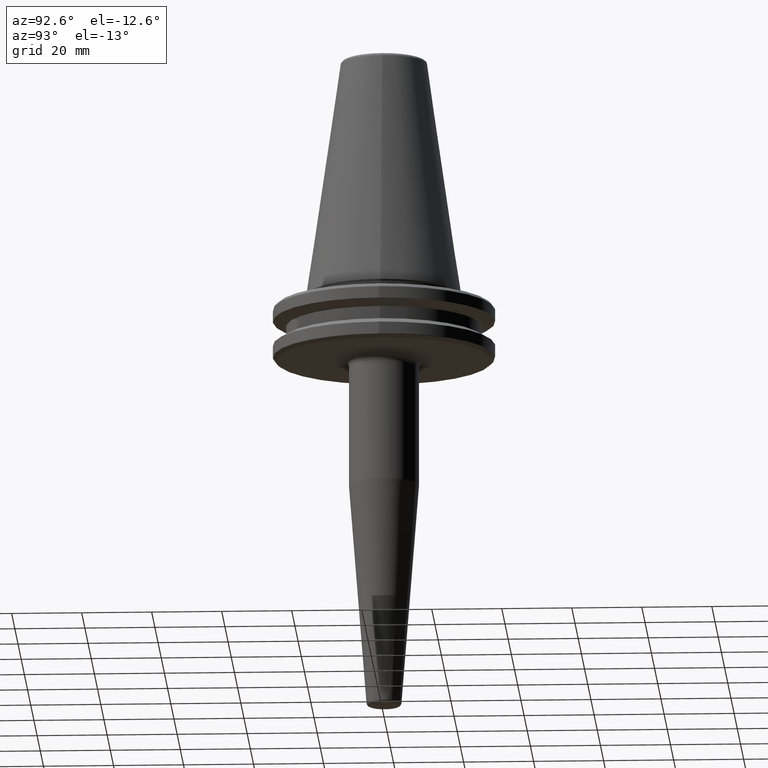
[diagram: clean part render]
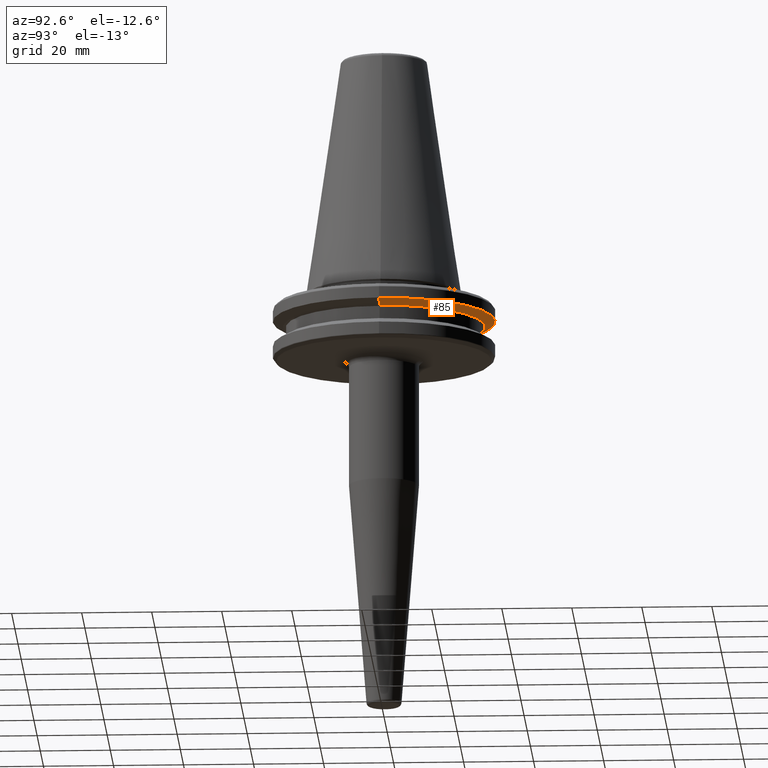
[diagram: same view with one face highlighted and labeled with its STEP entity id]
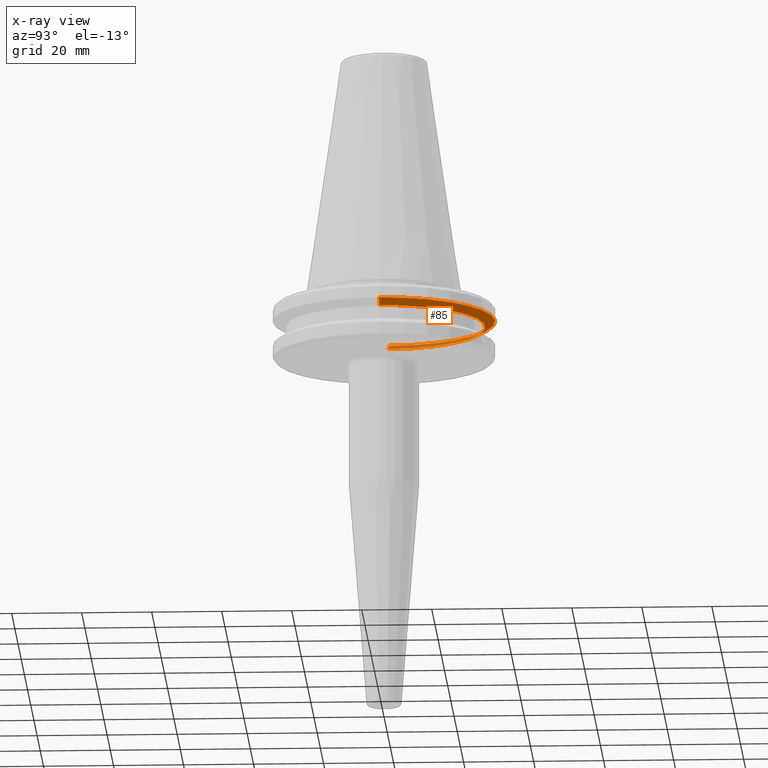
[diagram: x-ray of the same camera — body ghosted, the highlighted face saturated]
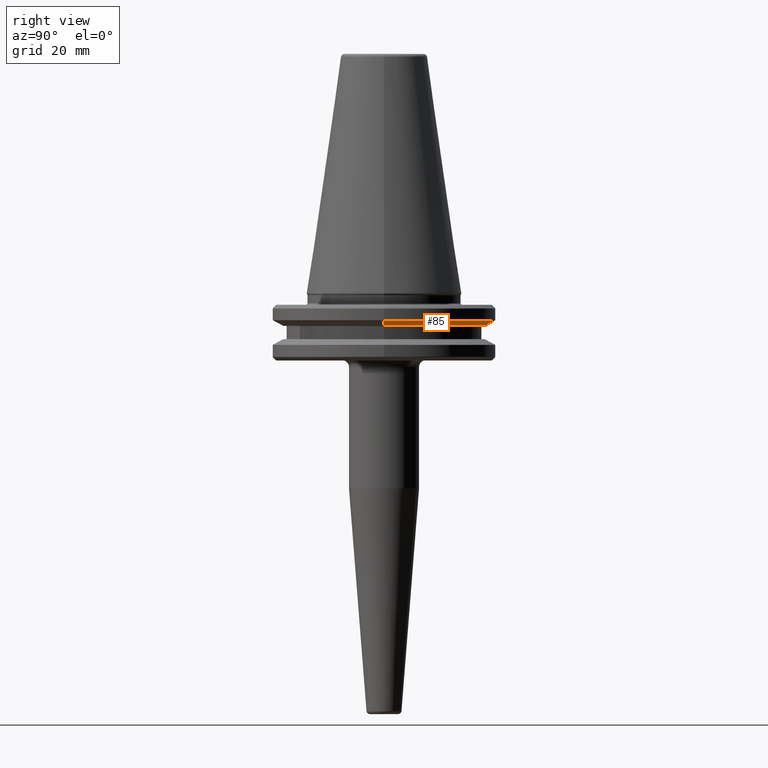
[diagram: same view with one face highlighted and labeled with its STEP entity id]
A machine part, auxiliary view. The second image highlights one B-rep face of the part: STEP entity #85.
The next image is the same camera in x-ray: the body ghosted, the highlighted face saturated — about 20% of this face is hidden behind the body in this view.
A second angle (right view) of the same face is appended — the face is thin or edge-on in the first view.
In plain terms, the highlighted conical surface has half-angle 60 deg.
Its self-contained STEP definition (entity closure, byte-faithful):
#18 = CARTESIAN_POINT ( 'NONE',  ( 0.0000000000000000000, 0.0000000000000000000, -7.578163357943284800 ) ) ;
#85 = ADVANCED_FACE ( 'NONE', ( #292 ), #241, .T. ) ;
#106 = DIRECTION ( 'NONE',  ( 0.8660254037844390400, 0.0000000000000000000, 0.4999999999999993300 ) ) ;
#114 = DIRECTION ( 'NONE',  ( 1.000000000000000000, 0.0000000000000000000, 0.0000000000000000000 ) ) ;
#124 = CARTESIAN_POINT ( 'NONE',  ( -31.75000000000000000, 3.888253587292846500E-015, -7.578163357943284800 ) ) ;
#212 = CARTESIAN_POINT ( 'NONE',  ( -31.75000000000000000, 3.888253587292846500E-015, -7.578163357943284800 ) ) ;
#241 = CONICAL_SURFACE ( 'NONE', #1120, 31.75000000000000000, 1.047197551196598500 ) ;
#271 = LINE ( 'NONE', #296, #349 ) ;
#277 = ORIENTED_EDGE ( 'NONE', *, *, #752, .F. ) ;
#280 = CIRCLE ( 'NONE', #551, 28.94089653438084400 ) ;
#290 = AXIS2_PLACEMENT_3D ( 'NONE', #18, #695, #114 ) ;
#292 = FACE_OUTER_BOUND ( 'NONE', #309, .T. ) ;
#296 = CARTESIAN_POINT ( 'NONE',  ( 31.75000000000000000, 0.0000000000000000000, -7.578163357943284800 ) ) ;
#309 = EDGE_LOOP ( 'NONE', ( #1121, #734, #764, #277 ) ) ;
#338 = DIRECTION ( 'NONE',  ( 1.000000000000000000, 0.0000000000000000000, 0.0000000000000000000 ) ) ;
#349 = VECTOR ( 'NONE', #106, 1000.000000000000000 ) ;
#428 = DIRECTION ( 'NONE',  ( -0.0000000000000000000, -0.0000000000000000000, 1.000000000000000000 ) ) ;
#502 = DIRECTION ( 'NONE',  ( -0.0000000000000000000, -0.0000000000000000000, 1.000000000000000000 ) ) ;
#551 = AXIS2_PLACEMENT_3D ( 'NONE', #1003, #428, #1098 ) ;
#566 = CARTESIAN_POINT ( 'NONE',  ( 28.94089653438084400, 0.0000000000000000000, -9.200000000000013500 ) ) ;
#596 = CARTESIAN_POINT ( 'NONE',  ( 0.0000000000000000000, 0.0000000000000000000, -7.578163357943284800 ) ) ;
#621 = VERTEX_POINT ( 'NONE', #1237 ) ;
#629 = VERTEX_POINT ( 'NONE', #566 ) ;
#668 = CIRCLE ( 'NONE', #290, 31.75000000000000000 ) ;
#695 = DIRECTION ( 'NONE',  ( -0.0000000000000000000, -0.0000000000000000000, 1.000000000000000000 ) ) ;
#734 = ORIENTED_EDGE ( 'NONE', *, *, #779, .T. ) ;
#752 = EDGE_CURVE ( 'NONE', #629, #1180, #271, .T. ) ;
#755 = VECTOR ( 'NONE', #803, 1000.000000000000000 ) ;
#759 = VERTEX_POINT ( 'NONE', #212 ) ;
#764 = ORIENTED_EDGE ( 'NONE', *, *, #933, .F. ) ;
#779 = EDGE_CURVE ( 'NONE', #621, #759, #1026, .T. ) ;
#792 = EDGE_CURVE ( 'NONE', #629, #621, #280, .T. ) ;
#803 = DIRECTION ( 'NONE',  ( -0.8660254037844390400, 1.060575238724907400E-016, 0.4999999999999993300 ) ) ;
#933 = EDGE_CURVE ( 'NONE', #1180, #759, #668, .T. ) ;
#1003 = CARTESIAN_POINT ( 'NONE',  ( 0.0000000000000000000, 0.0000000000000000000, -9.200000000000013500 ) ) ;
#1026 = LINE ( 'NONE', #124, #755 ) ;
#1098 = DIRECTION ( 'NONE',  ( 1.000000000000000000, 0.0000000000000000000, 0.0000000000000000000 ) ) ;
#1120 = AXIS2_PLACEMENT_3D ( 'NONE', #596, #502, #338 ) ;
#1121 = ORIENTED_EDGE ( 'NONE', *, *, #792, .T. ) ;
#1180 = VERTEX_POINT ( 'NONE', #1194 ) ;
#1194 = CARTESIAN_POINT ( 'NONE',  ( 31.75000000000000000, 0.0000000000000000000, -7.578163357943284800 ) ) ;
#1237 = CARTESIAN_POINT ( 'NONE',  ( -28.94089653438084400, 3.716245608910634800E-015, -9.200000000000013500 ) ) ;